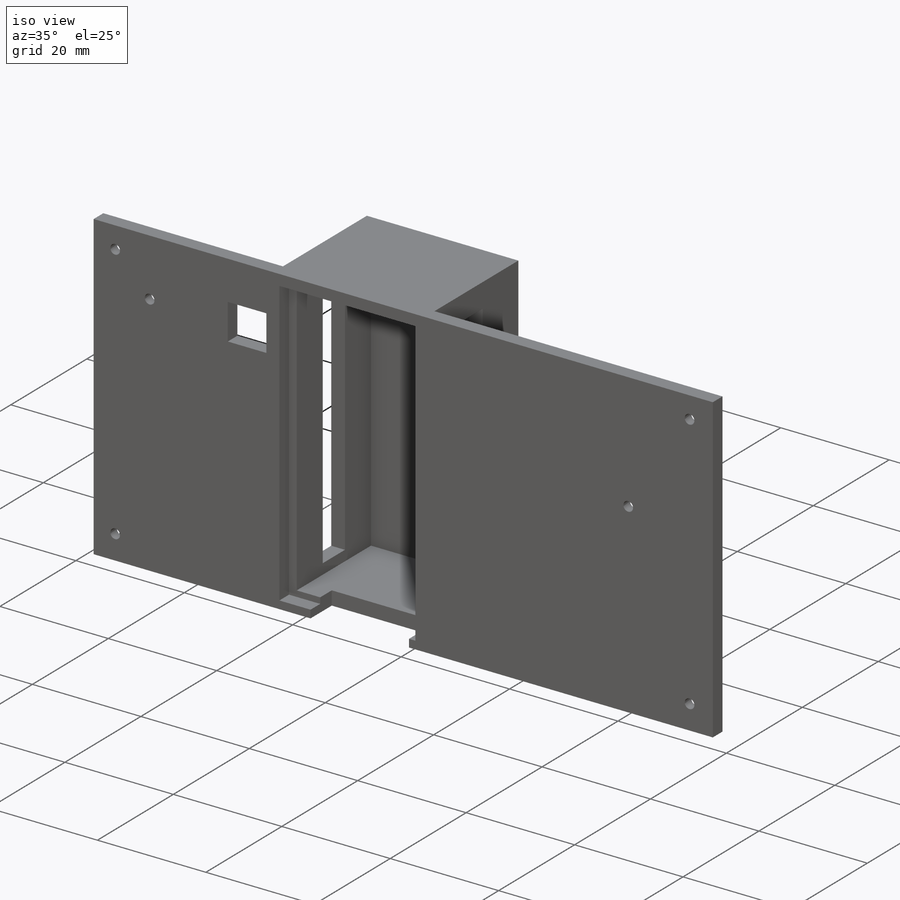
[diagram: iso view]
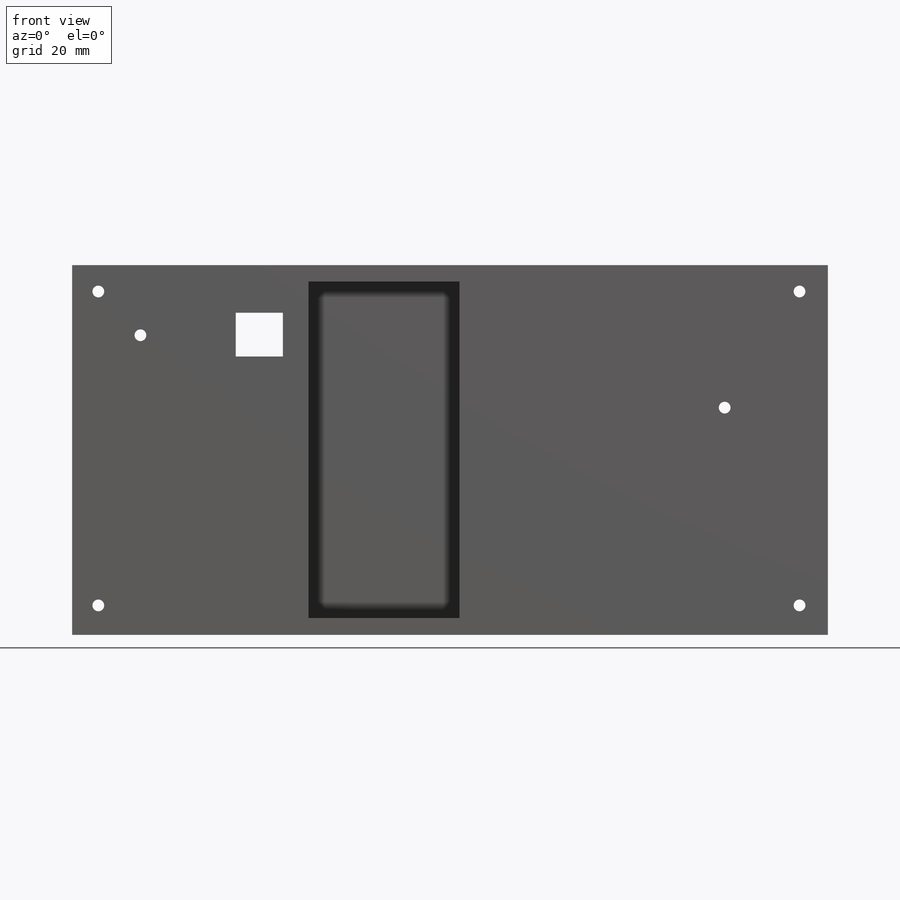
[diagram: front view]
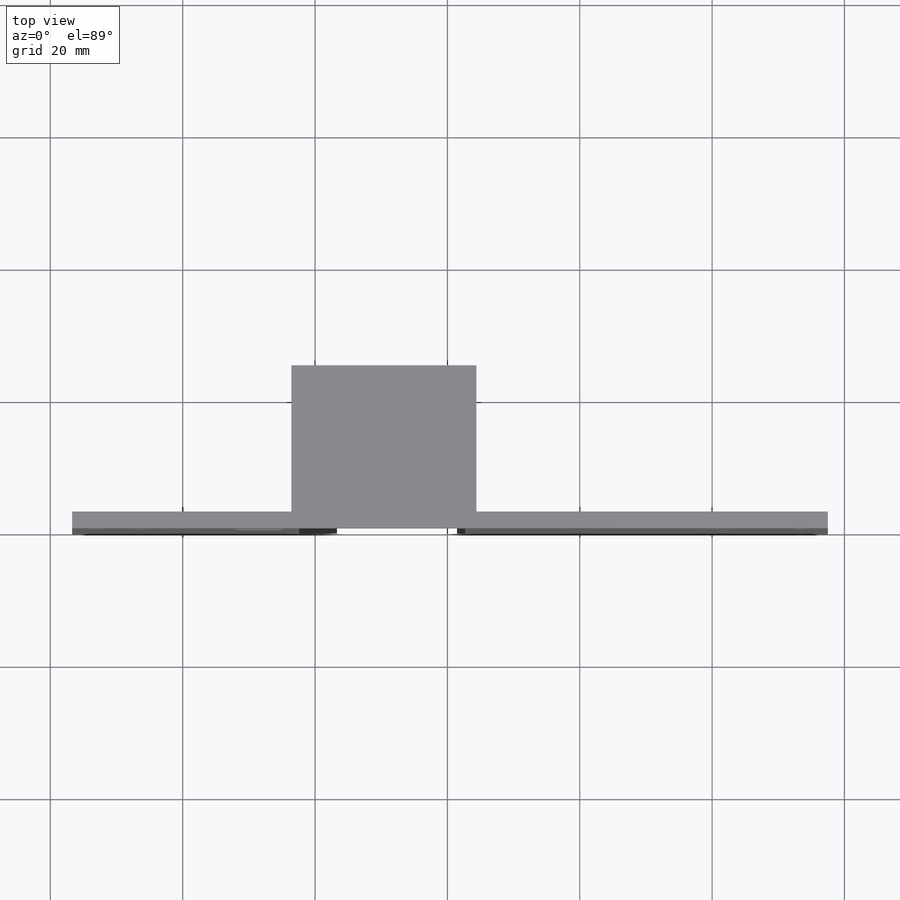
[diagram: top view]
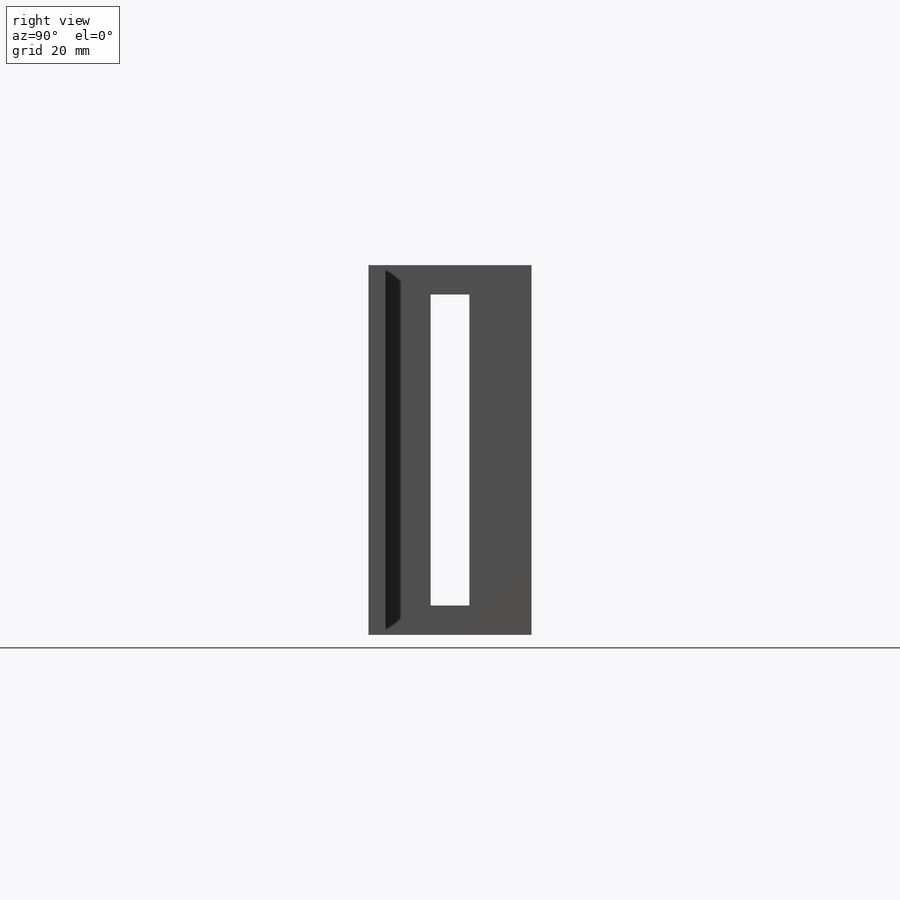
[diagram: right view]
SOLIDWORKS PART (.sldprt)
format: sldprt  version: not decoded by parser v0  size: 322,560 bytes
history: native  units: mm
features: sketch x11, cut_extrude x4, extrude x3, hole x2, material x1, shell x1 (+12 scaffold rows collapsed)
feature tree (34):
  scaffold x12  (default folders/planes/origin — collapsed)
  material  "Material <not specified>"
  sketch  "Sketch1"
  extrude  "Boss-Extrude1"  Depth=2.54mm
  sketch  "Sketch2"  dims[D1=6.604mm D2=7.112mm]
  cut_extrude  "Cut-Extrude2"  [1 undecoded]
  sketch  "Sketch5"  dims[D1=27.94mm D2=27.94mm]
  extrude  "Boss-Extrude2"  Depth=19.558mm
  shell  "Shell2"  Thickness=2.54mm
  sketch  "Sketch6"
  cut_extrude  "Cut-Extrude3"  [1 undecoded]
  sketch  "Sketch7"  dims[D1=~46.976533mm D2=~5.851976mm]
  cut_extrude  "Cut-Extrude4"  [1 undecoded]
  sketch  "Sketch8"  dims[c1.D1=1.397mm c1.D2=17.78mm c1.D3=~1.900207mm c1.D4=~4.440207mm c2.D1=18.161mm]
  cut_extrude  "Cut-Extrude5"  Depth=19.558mm
  hole  "CBORE for #0 Binding Head Machine Screw1"  Diameter=1.778mm Depth=2.54mm
  sketch  "Sketch10"
  sketch  "Sketch9"  dims[hole-wizard template sketch: 42 standard entries collapsed; hole parameters kept: c12.Thru Hole Depth=2.54mm c12.C'Bore Dia.=~3.97002mm c12.C'Bore Depth=0.8128mm c12.Near C'Sink Dia.=~5.24002mm c12.D6=~4.399409mm c12.Near C'Sink Angle=90.0deg]
  hole  "CBORE for #0 Binding Head Machine Screw2"  Diameter=1.778mm Depth=2.54mm
  sketch  "Sketch15"
  sketch  "Sketch14"  dims[hole-wizard template sketch: 42 standard entries collapsed; hole parameters kept: c12.Thru Hole Depth=2.54mm c12.C'Bore Dia.=~3.97002mm c12.C'Bore Depth=0.8128mm c12.Near C'Sink Dia.=~5.24002mm c12.D6=~4.399409mm c12.Near C'Sink Angle=90.0deg]
  sketch  "Sketch16"  dims[D1=55.88mm D2=27.94mm]
  extrude  "Boss-Extrude3"  Depth=2.54mm
decode coverage: 14 of 21 modeling features carry decoded parameters
note: ~ marks probable driven/reference dimensions
note: 3 parameter values undecoded
summary: no parameter record found for 3 features
note: suppression state not decoded; provenance and decode notes live in map.json
